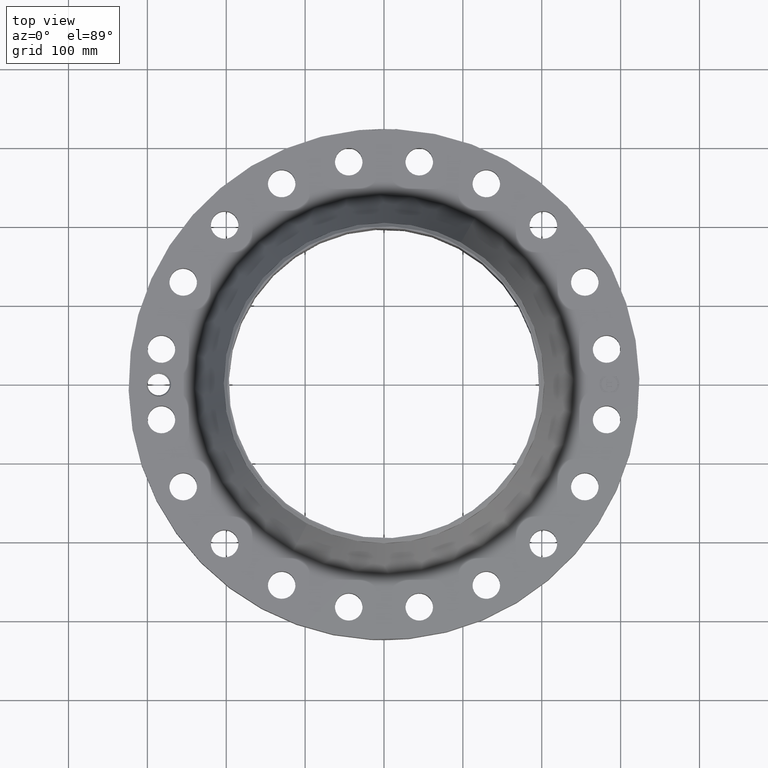
[diagram: clean part render]
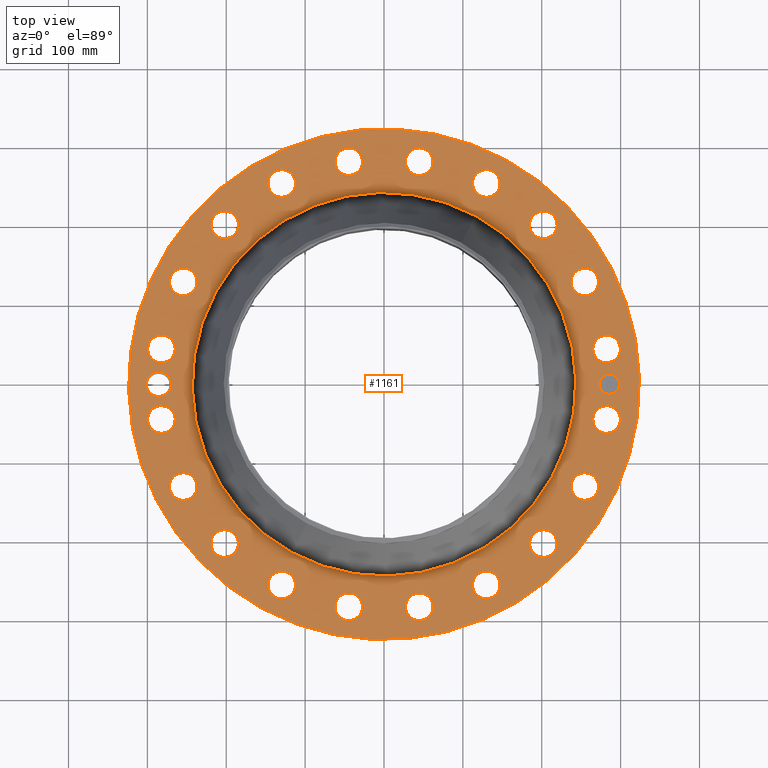
[diagram: same view with one face highlighted and labeled with its STEP entity id]
A machine part, top view. The second image highlights one B-rep face of the part: STEP entity #1161.
In plain terms, the highlighted planar face has unit normal (0, 0, -1).
Its self-contained STEP definition (entity closure, byte-faithful):
#58=AXIS2_PLACEMENT_3D('Circle Axis2P3D',#56,#57,$) ;
#608=AXIS2_PLACEMENT_3D('Circle Axis2P3D',#606,#607,$) ;
#708=AXIS2_PLACEMENT_3D('Plane Axis2P3D',#705,#706,#707) ;
#741=AXIS2_PLACEMENT_3D('Circle Axis2P3D',#739,#740,$) ;
#748=AXIS2_PLACEMENT_3D('Circle Axis2P3D',#746,#747,$) ;
#755=AXIS2_PLACEMENT_3D('Circle Axis2P3D',#753,#754,$) ;
#767=AXIS2_PLACEMENT_3D('Circle Axis2P3D',#765,#766,$) ;
#776=AXIS2_PLACEMENT_3D('Circle Axis2P3D',#774,#775,$) ;
#785=AXIS2_PLACEMENT_3D('Circle Axis2P3D',#783,#784,$) ;
#794=AXIS2_PLACEMENT_3D('Circle Axis2P3D',#792,#793,$) ;
#803=AXIS2_PLACEMENT_3D('Circle Axis2P3D',#801,#802,$) ;
#812=AXIS2_PLACEMENT_3D('Circle Axis2P3D',#810,#811,$) ;
#821=AXIS2_PLACEMENT_3D('Circle Axis2P3D',#819,#820,$) ;
#830=AXIS2_PLACEMENT_3D('Circle Axis2P3D',#828,#829,$) ;
#839=AXIS2_PLACEMENT_3D('Circle Axis2P3D',#837,#838,$) ;
#848=AXIS2_PLACEMENT_3D('Circle Axis2P3D',#846,#847,$) ;
#857=AXIS2_PLACEMENT_3D('Circle Axis2P3D',#855,#856,$) ;
#866=AXIS2_PLACEMENT_3D('Circle Axis2P3D',#864,#865,$) ;
#875=AXIS2_PLACEMENT_3D('Circle Axis2P3D',#873,#874,$) ;
#884=AXIS2_PLACEMENT_3D('Circle Axis2P3D',#882,#883,$) ;
#893=AXIS2_PLACEMENT_3D('Circle Axis2P3D',#891,#892,$) ;
#902=AXIS2_PLACEMENT_3D('Circle Axis2P3D',#900,#901,$) ;
#911=AXIS2_PLACEMENT_3D('Circle Axis2P3D',#909,#910,$) ;
#920=AXIS2_PLACEMENT_3D('Circle Axis2P3D',#918,#919,$) ;
#929=AXIS2_PLACEMENT_3D('Circle Axis2P3D',#927,#928,$) ;
#938=AXIS2_PLACEMENT_3D('Circle Axis2P3D',#936,#937,$) ;
#947=AXIS2_PLACEMENT_3D('Circle Axis2P3D',#945,#946,$) ;
#956=AXIS2_PLACEMENT_3D('Circle Axis2P3D',#954,#955,$) ;
#965=AXIS2_PLACEMENT_3D('Circle Axis2P3D',#963,#964,$) ;
#974=AXIS2_PLACEMENT_3D('Circle Axis2P3D',#972,#973,$) ;
#983=AXIS2_PLACEMENT_3D('Circle Axis2P3D',#981,#982,$) ;
#992=AXIS2_PLACEMENT_3D('Circle Axis2P3D',#990,#991,$) ;
#1001=AXIS2_PLACEMENT_3D('Circle Axis2P3D',#999,#1000,$) ;
#1010=AXIS2_PLACEMENT_3D('Circle Axis2P3D',#1008,#1009,$) ;
#1019=AXIS2_PLACEMENT_3D('Circle Axis2P3D',#1017,#1018,$) ;
#1028=AXIS2_PLACEMENT_3D('Circle Axis2P3D',#1026,#1027,$) ;
#1037=AXIS2_PLACEMENT_3D('Circle Axis2P3D',#1035,#1036,$) ;
#1046=AXIS2_PLACEMENT_3D('Circle Axis2P3D',#1044,#1045,$) ;
#1055=AXIS2_PLACEMENT_3D('Circle Axis2P3D',#1053,#1054,$) ;
#1064=AXIS2_PLACEMENT_3D('Circle Axis2P3D',#1062,#1063,$) ;
#1073=AXIS2_PLACEMENT_3D('Circle Axis2P3D',#1071,#1072,$) ;
#1082=AXIS2_PLACEMENT_3D('Circle Axis2P3D',#1080,#1081,$) ;
#1091=AXIS2_PLACEMENT_3D('Circle Axis2P3D',#1089,#1090,$) ;
#1100=AXIS2_PLACEMENT_3D('Circle Axis2P3D',#1098,#1099,$) ;
#1109=AXIS2_PLACEMENT_3D('Circle Axis2P3D',#1107,#1108,$) ;
#1118=AXIS2_PLACEMENT_3D('Circle Axis2P3D',#1116,#1117,$) ;
#1127=AXIS2_PLACEMENT_3D('Circle Axis2P3D',#1125,#1126,$) ;
#1136=AXIS2_PLACEMENT_3D('Circle Axis2P3D',#1134,#1135,$) ;
#1145=AXIS2_PLACEMENT_3D('Circle Axis2P3D',#1143,#1144,$) ;
#1154=AXIS2_PLACEMENT_3D('Circle Axis2P3D',#1152,#1153,$) ;
#53=CARTESIAN_POINT('Vertex',(-6.11267561723,-11.1891776641,2.31000000001)) ;
#56=CARTESIAN_POINT('Axis2P3D Location',(0.,0.,2.31000000001)) ;
#60=CARTESIAN_POINT('Vertex',(6.11267561723,11.1891776641,2.31000000001)) ;
#606=CARTESIAN_POINT('Axis2P3D Location',(0.,0.,2.31000000001)) ;
#705=CARTESIAN_POINT('Axis2P3D Location',(0.,12.7500000001,2.31000000001)) ;
#715=CARTESIAN_POINT('Control Point',(-10.625,2.23792987641E-015,2.31000000001)) ;
#716=CARTESIAN_POINT('Control Point',(-10.627053404,0.0564977587389,2.31000000001)) ;
#717=CARTESIAN_POINT('Control Point',(-10.6354952382,0.112654190292,2.31000000001)) ;
#718=CARTESIAN_POINT('Control Point',(-10.6502771591,0.167499162331,2.31000000001)) ;
#719=CARTESIAN_POINT('Control Point',(-10.6711200803,0.220072062833,2.31000000001)) ;
#720=CARTESIAN_POINT('Control Point',(-10.6975514528,0.269526248742,2.31000000001)) ;
#721=CARTESIAN_POINT('Vertex',(-10.625,2.23792987641E-015,2.31000000001)) ;
#723=CARTESIAN_POINT('Vertex',(-10.6975514528,0.269526248742,2.31000000001)) ;
#727=CARTESIAN_POINT('Control Point',(-10.625,0.,2.31000000001)) ;
#728=CARTESIAN_POINT('Control Point',(-10.6268633152,-0.0512676180666,2.31000000001)) ;
#729=CARTESIAN_POINT('Control Point',(-10.6339870212,-0.102254178914,2.31000000001)) ;
#730=CARTESIAN_POINT('Control Point',(-10.6463262874,-0.152216836455,2.31000000001)) ;
#731=CARTESIAN_POINT('Control Point',(-10.6654955776,-0.205462311492,2.31000000001)) ;
#732=CARTESIAN_POINT('Control Point',(-10.6903817405,-0.255800740708,2.31000000001)) ;
#733=CARTESIAN_POINT('Control Point',(-10.6927804709,-0.260523955129,2.31000000001)) ;
#734=CARTESIAN_POINT('Control Point',(-10.6952293397,-0.265219843981,2.31000000001)) ;
#735=CARTESIAN_POINT('Control Point',(-10.6977279419,-0.269887698635,2.31000000001)) ;
#736=CARTESIAN_POINT('Vertex',(-10.6977279419,-0.269887698635,2.31000000001)) ;
#739=CARTESIAN_POINT('Axis2P3D Location',(-11.25,-4.47585975282E-015,2.31000000001)) ;
#743=CARTESIAN_POINT('Vertex',(-10.7105587751,-0.294698084326,2.31000000001)) ;
#746=CARTESIAN_POINT('Axis2P3D Location',(-11.25,-4.47585975282E-015,2.31000000001)) ;
#750=CARTESIAN_POINT('Vertex',(-11.789441225,0.294698084326,2.31000000001)) ;
#753=CARTESIAN_POINT('Axis2P3D Location',(-11.25,-4.47585975282E-015,2.31000000001)) ;
#765=CARTESIAN_POINT('Axis2P3D Location',(11.1114938317,-1.75988773171,2.31000000001)) ;
#769=CARTESIAN_POINT('Vertex',(10.505961864,-1.42908411007,2.31000000001)) ;
#771=CARTESIAN_POINT('Vertex',(11.7170257994,-2.09069135335,2.31000000001)) ;
#774=CARTESIAN_POINT('Axis2P3D Location',(11.1114938317,-1.75988773171,2.31000000001)) ;
#783=CARTESIAN_POINT('Axis2P3D Location',(0.,0.,2.31000000001)) ;
#787=CARTESIAN_POINT('Vertex',(-4.5907799876,-8.40336640038,2.31000000001)) ;
#789=CARTESIAN_POINT('Vertex',(4.5907799876,8.40336640038,2.31000000001)) ;
#792=CARTESIAN_POINT('Axis2P3D Location',(0.,0.,2.31000000001)) ;
#801=CARTESIAN_POINT('Axis2P3D Location',(10.0238233972,-5.10739312209,2.31000000001)) ;
#805=CARTESIAN_POINT('Vertex',(10.49749458,-5.60912573072,2.31000000001)) ;
#807=CARTESIAN_POINT('Vertex',(9.55015221433,-4.60566051346,2.31000000001)) ;
#810=CARTESIAN_POINT('Axis2P3D Location',(10.0238233972,-5.10739312209,2.31000000001)) ;
#819=CARTESIAN_POINT('Axis2P3D Location',(7.95495128838,-7.95495128838,2.31000000001)) ;
#823=CARTESIAN_POINT('Vertex',(8.25039545069,-8.5784998005,2.31000000001)) ;
#825=CARTESIAN_POINT('Vertex',(7.65950712607,-7.33140277626,2.31000000001)) ;
#828=CARTESIAN_POINT('Axis2P3D Location',(7.95495128838,-7.95495128838,2.31000000001)) ;
#837=CARTESIAN_POINT('Axis2P3D Location',(5.10739312209,-10.0238233972,2.31000000001)) ;
#841=CARTESIAN_POINT('Vertex',(5.19569013079,-10.7081505399,2.31000000001)) ;
#843=CARTESIAN_POINT('Vertex',(5.01909611339,-9.33949625444,2.31000000001)) ;
#846=CARTESIAN_POINT('Axis2P3D Location',(5.10739312209,-10.0238233972,2.31000000001)) ;
#855=CARTESIAN_POINT('Axis2P3D Location',(1.75988773171,-11.1114938317,2.31000000001)) ;
#859=CARTESIAN_POINT('Vertex',(1.6323944604,-11.7896128963,2.31000000001)) ;
#861=CARTESIAN_POINT('Vertex',(1.88738100302,-10.4333747671,2.31000000001)) ;
#864=CARTESIAN_POINT('Axis2P3D Location',(1.75988773171,-11.1114938317,2.31000000001)) ;
#873=CARTESIAN_POINT('Axis2P3D Location',(-1.75988773171,-11.1114938317,2.31000000001)) ;
#877=CARTESIAN_POINT('Vertex',(-2.09069135335,-11.7170257994,2.31000000001)) ;
#879=CARTESIAN_POINT('Vertex',(-1.42908411007,-10.505961864,2.31000000001)) ;
#882=CARTESIAN_POINT('Axis2P3D Location',(-1.75988773171,-11.1114938317,2.31000000001)) ;
#891=CARTESIAN_POINT('Axis2P3D Location',(-5.10739312209,-10.0238233972,2.31000000001)) ;
#895=CARTESIAN_POINT('Vertex',(-5.60912573072,-10.49749458,2.31000000001)) ;
#897=CARTESIAN_POINT('Vertex',(-4.60566051346,-9.55015221433,2.31000000001)) ;
#900=CARTESIAN_POINT('Axis2P3D Location',(-5.10739312209,-10.0238233972,2.31000000001)) ;
#909=CARTESIAN_POINT('Axis2P3D Location',(-7.95495128838,-7.95495128838,2.31000000001)) ;
#913=CARTESIAN_POINT('Vertex',(-8.5784998005,-8.25039545069,2.31000000001)) ;
#915=CARTESIAN_POINT('Vertex',(-7.33140277626,-7.65950712607,2.31000000001)) ;
#918=CARTESIAN_POINT('Axis2P3D Location',(-7.95495128838,-7.95495128838,2.31000000001)) ;
#927=CARTESIAN_POINT('Axis2P3D Location',(-10.0238233972,-5.10739312209,2.31000000001)) ;
#931=CARTESIAN_POINT('Vertex',(-10.7081505399,-5.19569013079,2.31000000001)) ;
#933=CARTESIAN_POINT('Vertex',(-9.33949625444,-5.01909611339,2.31000000001)) ;
#936=CARTESIAN_POINT('Axis2P3D Location',(-10.0238233972,-5.10739312209,2.31000000001)) ;
#945=CARTESIAN_POINT('Axis2P3D Location',(-11.1114938317,-1.75988773171,2.31000000001)) ;
#949=CARTESIAN_POINT('Vertex',(-11.7896128963,-1.6323944604,2.31000000001)) ;
#951=CARTESIAN_POINT('Vertex',(-10.4333747671,-1.88738100302,2.31000000001)) ;
#954=CARTESIAN_POINT('Axis2P3D Location',(-11.1114938317,-1.75988773171,2.31000000001)) ;
#963=CARTESIAN_POINT('Axis2P3D Location',(-11.1114938317,1.75988773171,2.31000000001)) ;
#967=CARTESIAN_POINT('Vertex',(-11.7170257994,2.09069135335,2.31000000001)) ;
#969=CARTESIAN_POINT('Vertex',(-10.505961864,1.42908411007,2.31000000001)) ;
#972=CARTESIAN_POINT('Axis2P3D Location',(-11.1114938317,1.75988773171,2.31000000001)) ;
#981=CARTESIAN_POINT('Axis2P3D Location',(-10.0238233972,5.10739312209,2.31000000001)) ;
#985=CARTESIAN_POINT('Vertex',(-10.49749458,5.60912573072,2.31000000001)) ;
#987=CARTESIAN_POINT('Vertex',(-9.55015221433,4.60566051346,2.31000000001)) ;
#990=CARTESIAN_POINT('Axis2P3D Location',(-10.0238233972,5.10739312209,2.31000000001)) ;
#999=CARTESIAN_POINT('Axis2P3D Location',(-7.95495128838,7.95495128838,2.31000000001)) ;
#1003=CARTESIAN_POINT('Vertex',(-8.25039545069,8.5784998005,2.31000000001)) ;
#1005=CARTESIAN_POINT('Vertex',(-7.65950712607,7.33140277626,2.31000000001)) ;
#1008=CARTESIAN_POINT('Axis2P3D Location',(-7.95495128838,7.95495128838,2.31000000001)) ;
#1017=CARTESIAN_POINT('Axis2P3D Location',(-5.10739312209,10.0238233972,2.31000000001)) ;
#1021=CARTESIAN_POINT('Vertex',(-5.19569013079,10.7081505399,2.31000000001)) ;
#1023=CARTESIAN_POINT('Vertex',(-5.01909611339,9.33949625444,2.31000000001)) ;
#1026=CARTESIAN_POINT('Axis2P3D Location',(-5.10739312209,10.0238233972,2.31000000001)) ;
#1035=CARTESIAN_POINT('Axis2P3D Location',(-1.75988773171,11.1114938317,2.31000000001)) ;
#1039=CARTESIAN_POINT('Vertex',(-1.6323944604,11.7896128963,2.31000000001)) ;
#1041=CARTESIAN_POINT('Vertex',(-1.88738100302,10.4333747671,2.31000000001)) ;
#1044=CARTESIAN_POINT('Axis2P3D Location',(-1.75988773171,11.1114938317,2.31000000001)) ;
#1053=CARTESIAN_POINT('Axis2P3D Location',(1.75988773171,11.1114938317,2.31000000001)) ;
#1057=CARTESIAN_POINT('Vertex',(2.09069135335,11.7170257994,2.31000000001)) ;
#1059=CARTESIAN_POINT('Vertex',(1.42908411007,10.505961864,2.31000000001)) ;
#1062=CARTESIAN_POINT('Axis2P3D Location',(1.75988773171,11.1114938317,2.31000000001)) ;
#1071=CARTESIAN_POINT('Axis2P3D Location',(5.10739312209,10.0238233972,2.31000000001)) ;
#1075=CARTESIAN_POINT('Vertex',(5.60912573072,10.49749458,2.31000000001)) ;
#1077=CARTESIAN_POINT('Vertex',(4.60566051346,9.55015221433,2.31000000001)) ;
#1080=CARTESIAN_POINT('Axis2P3D Location',(5.10739312209,10.0238233972,2.31000000001)) ;
#1089=CARTESIAN_POINT('Axis2P3D Location',(7.95495128838,7.95495128838,2.31000000001)) ;
#1093=CARTESIAN_POINT('Vertex',(8.5784998005,8.25039545069,2.31000000001)) ;
#1095=CARTESIAN_POINT('Vertex',(7.33140277626,7.65950712607,2.31000000001)) ;
#1098=CARTESIAN_POINT('Axis2P3D Location',(7.95495128838,7.95495128838,2.31000000001)) ;
#1107=CARTESIAN_POINT('Axis2P3D Location',(10.0238233972,5.10739312209,2.31000000001)) ;
#1111=CARTESIAN_POINT('Vertex',(10.7081505399,5.19569013079,2.31000000001)) ;
#1113=CARTESIAN_POINT('Vertex',(9.33949625444,5.01909611339,2.31000000001)) ;
#1116=CARTESIAN_POINT('Axis2P3D Location',(10.0238233972,5.10739312209,2.31000000001)) ;
#1125=CARTESIAN_POINT('Axis2P3D Location',(11.1114938317,1.75988773171,2.31000000001)) ;
#1129=CARTESIAN_POINT('Vertex',(11.7896128963,1.6323944604,2.31000000001)) ;
#1131=CARTESIAN_POINT('Vertex',(10.4333747671,1.88738100302,2.31000000001)) ;
#1134=CARTESIAN_POINT('Axis2P3D Location',(11.1114938317,1.75988773171,2.31000000001)) ;
#1143=CARTESIAN_POINT('Axis2P3D Location',(11.25,0.,2.31000000001)) ;
#1147=CARTESIAN_POINT('Vertex',(11.25,0.499999995002,2.31000000001)) ;
#1149=CARTESIAN_POINT('Vertex',(11.25,-0.499999995002,2.31000000001)) ;
#1152=CARTESIAN_POINT('Axis2P3D Location',(11.25,0.,2.31000000001)) ;
#57=DIRECTION('Axis2P3D Direction',(0.,0.,-0.0393700787402)) ;
#607=DIRECTION('Axis2P3D Direction',(0.,0.,-0.0393700787402)) ;
#706=DIRECTION('Axis2P3D Direction',(0.,0.,-0.0393700787402)) ;
#707=DIRECTION('Axis2P3D XDirection',(0.0393700787402,0.,0.)) ;
#740=DIRECTION('Axis2P3D Direction',(0.,0.,-0.0393700787402)) ;
#747=DIRECTION('Axis2P3D Direction',(0.,0.,-0.0393700787402)) ;
#754=DIRECTION('Axis2P3D Direction',(0.,0.,-0.0393700787402)) ;
#766=DIRECTION('Axis2P3D Direction',(0.,0.,-0.0393700787402)) ;
#775=DIRECTION('Axis2P3D Direction',(0.,0.,-0.0393700787402)) ;
#784=DIRECTION('Axis2P3D Direction',(0.,0.,-0.0393700787402)) ;
#793=DIRECTION('Axis2P3D Direction',(0.,0.,-0.0393700787402)) ;
#802=DIRECTION('Axis2P3D Direction',(0.,0.,-0.0393700787402)) ;
#811=DIRECTION('Axis2P3D Direction',(0.,0.,-0.0393700787402)) ;
#820=DIRECTION('Axis2P3D Direction',(0.,0.,-0.0393700787402)) ;
#829=DIRECTION('Axis2P3D Direction',(0.,0.,-0.0393700787402)) ;
#838=DIRECTION('Axis2P3D Direction',(0.,0.,-0.0393700787402)) ;
#847=DIRECTION('Axis2P3D Direction',(0.,0.,-0.0393700787402)) ;
#856=DIRECTION('Axis2P3D Direction',(0.,0.,-0.0393700787402)) ;
#865=DIRECTION('Axis2P3D Direction',(0.,0.,-0.0393700787402)) ;
#874=DIRECTION('Axis2P3D Direction',(0.,0.,-0.0393700787402)) ;
#883=DIRECTION('Axis2P3D Direction',(0.,0.,-0.0393700787402)) ;
#892=DIRECTION('Axis2P3D Direction',(0.,0.,-0.0393700787402)) ;
#901=DIRECTION('Axis2P3D Direction',(0.,0.,-0.0393700787402)) ;
#910=DIRECTION('Axis2P3D Direction',(0.,0.,-0.0393700787402)) ;
#919=DIRECTION('Axis2P3D Direction',(0.,0.,-0.0393700787402)) ;
#928=DIRECTION('Axis2P3D Direction',(0.,0.,-0.0393700787402)) ;
#937=DIRECTION('Axis2P3D Direction',(0.,0.,-0.0393700787402)) ;
#946=DIRECTION('Axis2P3D Direction',(0.,0.,-0.0393700787402)) ;
#955=DIRECTION('Axis2P3D Direction',(0.,0.,-0.0393700787402)) ;
#964=DIRECTION('Axis2P3D Direction',(0.,0.,-0.0393700787402)) ;
#973=DIRECTION('Axis2P3D Direction',(0.,0.,-0.0393700787402)) ;
#982=DIRECTION('Axis2P3D Direction',(0.,0.,-0.0393700787402)) ;
#991=DIRECTION('Axis2P3D Direction',(0.,0.,-0.0393700787402)) ;
#1000=DIRECTION('Axis2P3D Direction',(0.,0.,-0.0393700787402)) ;
#1009=DIRECTION('Axis2P3D Direction',(0.,0.,-0.0393700787402)) ;
#1018=DIRECTION('Axis2P3D Direction',(0.,0.,-0.0393700787402)) ;
#1027=DIRECTION('Axis2P3D Direction',(0.,0.,-0.0393700787402)) ;
#1036=DIRECTION('Axis2P3D Direction',(0.,0.,-0.0393700787402)) ;
#1045=DIRECTION('Axis2P3D Direction',(0.,0.,-0.0393700787402)) ;
#1054=DIRECTION('Axis2P3D Direction',(0.,0.,-0.0393700787402)) ;
#1063=DIRECTION('Axis2P3D Direction',(0.,0.,-0.0393700787402)) ;
#1072=DIRECTION('Axis2P3D Direction',(0.,0.,-0.0393700787402)) ;
#1081=DIRECTION('Axis2P3D Direction',(0.,0.,-0.0393700787402)) ;
#1090=DIRECTION('Axis2P3D Direction',(0.,0.,-0.0393700787402)) ;
#1099=DIRECTION('Axis2P3D Direction',(0.,0.,-0.0393700787402)) ;
#1108=DIRECTION('Axis2P3D Direction',(0.,0.,-0.0393700787402)) ;
#1117=DIRECTION('Axis2P3D Direction',(0.,0.,-0.0393700787402)) ;
#1126=DIRECTION('Axis2P3D Direction',(0.,0.,-0.0393700787402)) ;
#1135=DIRECTION('Axis2P3D Direction',(0.,0.,-0.0393700787402)) ;
#1144=DIRECTION('Axis2P3D Direction',(0.,0.,-0.0393700787402)) ;
#1153=DIRECTION('Axis2P3D Direction',(0.,0.,-0.0393700787402)) ;
#711=ORIENTED_EDGE('',*,*,#610,.F.) ;
#712=ORIENTED_EDGE('',*,*,#62,.F.) ;
#759=ORIENTED_EDGE('',*,*,#725,.F.) ;
#760=ORIENTED_EDGE('',*,*,#738,.T.) ;
#761=ORIENTED_EDGE('',*,*,#745,.T.) ;
#762=ORIENTED_EDGE('',*,*,#752,.T.) ;
#763=ORIENTED_EDGE('',*,*,#757,.T.) ;
#780=ORIENTED_EDGE('',*,*,#773,.T.) ;
#781=ORIENTED_EDGE('',*,*,#778,.T.) ;
#798=ORIENTED_EDGE('',*,*,#791,.T.) ;
#799=ORIENTED_EDGE('',*,*,#796,.T.) ;
#816=ORIENTED_EDGE('',*,*,#809,.T.) ;
#817=ORIENTED_EDGE('',*,*,#814,.T.) ;
#834=ORIENTED_EDGE('',*,*,#827,.T.) ;
#835=ORIENTED_EDGE('',*,*,#832,.T.) ;
#852=ORIENTED_EDGE('',*,*,#845,.T.) ;
#853=ORIENTED_EDGE('',*,*,#850,.T.) ;
#870=ORIENTED_EDGE('',*,*,#863,.T.) ;
#871=ORIENTED_EDGE('',*,*,#868,.T.) ;
#888=ORIENTED_EDGE('',*,*,#881,.T.) ;
#889=ORIENTED_EDGE('',*,*,#886,.T.) ;
#906=ORIENTED_EDGE('',*,*,#899,.T.) ;
#907=ORIENTED_EDGE('',*,*,#904,.T.) ;
#924=ORIENTED_EDGE('',*,*,#917,.T.) ;
#925=ORIENTED_EDGE('',*,*,#922,.T.) ;
#942=ORIENTED_EDGE('',*,*,#935,.T.) ;
#943=ORIENTED_EDGE('',*,*,#940,.T.) ;
#960=ORIENTED_EDGE('',*,*,#953,.T.) ;
#961=ORIENTED_EDGE('',*,*,#958,.T.) ;
#978=ORIENTED_EDGE('',*,*,#971,.T.) ;
#979=ORIENTED_EDGE('',*,*,#976,.T.) ;
#996=ORIENTED_EDGE('',*,*,#989,.T.) ;
#997=ORIENTED_EDGE('',*,*,#994,.T.) ;
#1014=ORIENTED_EDGE('',*,*,#1007,.T.) ;
#1015=ORIENTED_EDGE('',*,*,#1012,.T.) ;
#1032=ORIENTED_EDGE('',*,*,#1025,.T.) ;
#1033=ORIENTED_EDGE('',*,*,#1030,.T.) ;
#1050=ORIENTED_EDGE('',*,*,#1043,.T.) ;
#1051=ORIENTED_EDGE('',*,*,#1048,.T.) ;
#1068=ORIENTED_EDGE('',*,*,#1061,.T.) ;
#1069=ORIENTED_EDGE('',*,*,#1066,.T.) ;
#1086=ORIENTED_EDGE('',*,*,#1079,.T.) ;
#1087=ORIENTED_EDGE('',*,*,#1084,.T.) ;
#1104=ORIENTED_EDGE('',*,*,#1097,.T.) ;
#1105=ORIENTED_EDGE('',*,*,#1102,.T.) ;
#1122=ORIENTED_EDGE('',*,*,#1115,.T.) ;
#1123=ORIENTED_EDGE('',*,*,#1120,.T.) ;
#1140=ORIENTED_EDGE('',*,*,#1133,.T.) ;
#1141=ORIENTED_EDGE('',*,*,#1138,.T.) ;
#1158=ORIENTED_EDGE('',*,*,#1151,.T.) ;
#1159=ORIENTED_EDGE('',*,*,#1156,.T.) ;
#764=FACE_BOUND('',#758,.T.) ;
#782=FACE_BOUND('',#779,.T.) ;
#800=FACE_BOUND('',#797,.T.) ;
#818=FACE_BOUND('',#815,.T.) ;
#836=FACE_BOUND('',#833,.T.) ;
#854=FACE_BOUND('',#851,.T.) ;
#872=FACE_BOUND('',#869,.T.) ;
#890=FACE_BOUND('',#887,.T.) ;
#908=FACE_BOUND('',#905,.T.) ;
#926=FACE_BOUND('',#923,.T.) ;
#944=FACE_BOUND('',#941,.T.) ;
#962=FACE_BOUND('',#959,.T.) ;
#980=FACE_BOUND('',#977,.T.) ;
#998=FACE_BOUND('',#995,.T.) ;
#1016=FACE_BOUND('',#1013,.T.) ;
#1034=FACE_BOUND('',#1031,.T.) ;
#1052=FACE_BOUND('',#1049,.T.) ;
#1070=FACE_BOUND('',#1067,.T.) ;
#1088=FACE_BOUND('',#1085,.T.) ;
#1106=FACE_BOUND('',#1103,.T.) ;
#1124=FACE_BOUND('',#1121,.T.) ;
#1142=FACE_BOUND('',#1139,.T.) ;
#1160=FACE_BOUND('',#1157,.T.) ;
#1161=ADVANCED_FACE('PartBody',(#713,#764,#782,#800,#818,#836,#854,#872,#890,#908,#926,#944,#962,#980,#998,#1016,#1034,#1052,#1070,#1088,#1106,#1124,#1142,#1160),#709,.F.) ;
#714=B_SPLINE_CURVE_WITH_KNOTS('',5,(#715,#716,#717,#718,#719,#720),.UNSPECIFIED.,.F.,.U.,(6,6),(0.,9.8778155284),.UNSPECIFIED.) ;
#726=B_SPLINE_CURVE_WITH_KNOTS('',5,(#727,#728,#729,#730,#731,#732,#733,#734,#735),.UNSPECIFIED.,.F.,.U.,(6,3,6),(0.,8.96340111805,9.8972871971),.UNSPECIFIED.) ;
#59=CIRCLE('generated circle',#58,12.7500000001) ;
#609=CIRCLE('generated circle',#608,12.7500000001) ;
#742=CIRCLE('generated circle',#741,0.614690000002) ;
#749=CIRCLE('generated circle',#748,0.614690000002) ;
#756=CIRCLE('generated circle',#755,0.614690000002) ;
#768=CIRCLE('generated circle',#767,0.690000000003) ;
#777=CIRCLE('generated circle',#776,0.690000000003) ;
#786=CIRCLE('generated circle',#785,9.57558498232) ;
#795=CIRCLE('generated circle',#794,9.57558498232) ;
#804=CIRCLE('generated circle',#803,0.690000000003) ;
#813=CIRCLE('generated circle',#812,0.690000000003) ;
#822=CIRCLE('generated circle',#821,0.690000000003) ;
#831=CIRCLE('generated circle',#830,0.690000000003) ;
#840=CIRCLE('generated circle',#839,0.690000000003) ;
#849=CIRCLE('generated circle',#848,0.690000000003) ;
#858=CIRCLE('generated circle',#857,0.690000000003) ;
#867=CIRCLE('generated circle',#866,0.690000000003) ;
#876=CIRCLE('generated circle',#875,0.690000000003) ;
#885=CIRCLE('generated circle',#884,0.690000000003) ;
#894=CIRCLE('generated circle',#893,0.690000000003) ;
#903=CIRCLE('generated circle',#902,0.690000000003) ;
#912=CIRCLE('generated circle',#911,0.690000000003) ;
#921=CIRCLE('generated circle',#920,0.690000000003) ;
#930=CIRCLE('generated circle',#929,0.690000000003) ;
#939=CIRCLE('generated circle',#938,0.690000000003) ;
#948=CIRCLE('generated circle',#947,0.690000000003) ;
#957=CIRCLE('generated circle',#956,0.690000000003) ;
#966=CIRCLE('generated circle',#965,0.690000000003) ;
#975=CIRCLE('generated circle',#974,0.690000000003) ;
#984=CIRCLE('generated circle',#983,0.690000000003) ;
#993=CIRCLE('generated circle',#992,0.690000000003) ;
#1002=CIRCLE('generated circle',#1001,0.690000000003) ;
#1011=CIRCLE('generated circle',#1010,0.690000000003) ;
#1020=CIRCLE('generated circle',#1019,0.690000000003) ;
#1029=CIRCLE('generated circle',#1028,0.690000000003) ;
#1038=CIRCLE('generated circle',#1037,0.690000000003) ;
#1047=CIRCLE('generated circle',#1046,0.690000000003) ;
#1056=CIRCLE('generated circle',#1055,0.690000000003) ;
#1065=CIRCLE('generated circle',#1064,0.690000000003) ;
#1074=CIRCLE('generated circle',#1073,0.690000000003) ;
#1083=CIRCLE('generated circle',#1082,0.690000000003) ;
#1092=CIRCLE('generated circle',#1091,0.690000000003) ;
#1101=CIRCLE('generated circle',#1100,0.690000000003) ;
#1110=CIRCLE('generated circle',#1109,0.690000000003) ;
#1119=CIRCLE('generated circle',#1118,0.690000000003) ;
#1128=CIRCLE('generated circle',#1127,0.690000000003) ;
#1137=CIRCLE('generated circle',#1136,0.690000000003) ;
#1146=CIRCLE('generated circle',#1145,0.499999995002) ;
#1155=CIRCLE('generated circle',#1154,0.499999995002) ;
#62=EDGE_CURVE('',#54,#61,#59,.T.) ;
#610=EDGE_CURVE('',#61,#54,#609,.T.) ;
#725=EDGE_CURVE('',#722,#724,#714,.T.) ;
#738=EDGE_CURVE('',#722,#737,#726,.T.) ;
#745=EDGE_CURVE('',#737,#744,#742,.T.) ;
#752=EDGE_CURVE('',#744,#751,#749,.T.) ;
#757=EDGE_CURVE('',#751,#724,#756,.T.) ;
#773=EDGE_CURVE('',#770,#772,#768,.T.) ;
#778=EDGE_CURVE('',#772,#770,#777,.T.) ;
#791=EDGE_CURVE('',#788,#790,#786,.T.) ;
#796=EDGE_CURVE('',#790,#788,#795,.T.) ;
#809=EDGE_CURVE('',#806,#808,#804,.T.) ;
#814=EDGE_CURVE('',#808,#806,#813,.T.) ;
#827=EDGE_CURVE('',#824,#826,#822,.T.) ;
#832=EDGE_CURVE('',#826,#824,#831,.T.) ;
#845=EDGE_CURVE('',#842,#844,#840,.T.) ;
#850=EDGE_CURVE('',#844,#842,#849,.T.) ;
#863=EDGE_CURVE('',#860,#862,#858,.T.) ;
#868=EDGE_CURVE('',#862,#860,#867,.T.) ;
#881=EDGE_CURVE('',#878,#880,#876,.T.) ;
#886=EDGE_CURVE('',#880,#878,#885,.T.) ;
#899=EDGE_CURVE('',#896,#898,#894,.T.) ;
#904=EDGE_CURVE('',#898,#896,#903,.T.) ;
#917=EDGE_CURVE('',#914,#916,#912,.T.) ;
#922=EDGE_CURVE('',#916,#914,#921,.T.) ;
#935=EDGE_CURVE('',#932,#934,#930,.T.) ;
#940=EDGE_CURVE('',#934,#932,#939,.T.) ;
#953=EDGE_CURVE('',#950,#952,#948,.T.) ;
#958=EDGE_CURVE('',#952,#950,#957,.T.) ;
#971=EDGE_CURVE('',#968,#970,#966,.T.) ;
#976=EDGE_CURVE('',#970,#968,#975,.T.) ;
#989=EDGE_CURVE('',#986,#988,#984,.T.) ;
#994=EDGE_CURVE('',#988,#986,#993,.T.) ;
#1007=EDGE_CURVE('',#1004,#1006,#1002,.T.) ;
#1012=EDGE_CURVE('',#1006,#1004,#1011,.T.) ;
#1025=EDGE_CURVE('',#1022,#1024,#1020,.T.) ;
#1030=EDGE_CURVE('',#1024,#1022,#1029,.T.) ;
#1043=EDGE_CURVE('',#1040,#1042,#1038,.T.) ;
#1048=EDGE_CURVE('',#1042,#1040,#1047,.T.) ;
#1061=EDGE_CURVE('',#1058,#1060,#1056,.T.) ;
#1066=EDGE_CURVE('',#1060,#1058,#1065,.T.) ;
#1079=EDGE_CURVE('',#1076,#1078,#1074,.T.) ;
#1084=EDGE_CURVE('',#1078,#1076,#1083,.T.) ;
#1097=EDGE_CURVE('',#1094,#1096,#1092,.T.) ;
#1102=EDGE_CURVE('',#1096,#1094,#1101,.T.) ;
#1115=EDGE_CURVE('',#1112,#1114,#1110,.T.) ;
#1120=EDGE_CURVE('',#1114,#1112,#1119,.T.) ;
#1133=EDGE_CURVE('',#1130,#1132,#1128,.T.) ;
#1138=EDGE_CURVE('',#1132,#1130,#1137,.T.) ;
#1151=EDGE_CURVE('',#1148,#1150,#1146,.T.) ;
#1156=EDGE_CURVE('',#1150,#1148,#1155,.T.) ;
#710=EDGE_LOOP('',(#711,#712)) ;
#758=EDGE_LOOP('',(#759,#760,#761,#762,#763)) ;
#779=EDGE_LOOP('',(#780,#781)) ;
#797=EDGE_LOOP('',(#798,#799)) ;
#815=EDGE_LOOP('',(#816,#817)) ;
#833=EDGE_LOOP('',(#834,#835)) ;
#851=EDGE_LOOP('',(#852,#853)) ;
#869=EDGE_LOOP('',(#870,#871)) ;
#887=EDGE_LOOP('',(#888,#889)) ;
#905=EDGE_LOOP('',(#906,#907)) ;
#923=EDGE_LOOP('',(#924,#925)) ;
#941=EDGE_LOOP('',(#942,#943)) ;
#959=EDGE_LOOP('',(#960,#961)) ;
#977=EDGE_LOOP('',(#978,#979)) ;
#995=EDGE_LOOP('',(#996,#997)) ;
#1013=EDGE_LOOP('',(#1014,#1015)) ;
#1031=EDGE_LOOP('',(#1032,#1033)) ;
#1049=EDGE_LOOP('',(#1050,#1051)) ;
#1067=EDGE_LOOP('',(#1068,#1069)) ;
#1085=EDGE_LOOP('',(#1086,#1087)) ;
#1103=EDGE_LOOP('',(#1104,#1105)) ;
#1121=EDGE_LOOP('',(#1122,#1123)) ;
#1139=EDGE_LOOP('',(#1140,#1141)) ;
#1157=EDGE_LOOP('',(#1158,#1159)) ;
#713=FACE_OUTER_BOUND('',#710,.T.) ;
#709=PLANE('',#708) ;
#54=VERTEX_POINT('',#53) ;
#61=VERTEX_POINT('',#60) ;
#722=VERTEX_POINT('',#721) ;
#724=VERTEX_POINT('',#723) ;
#737=VERTEX_POINT('',#736) ;
#744=VERTEX_POINT('',#743) ;
#751=VERTEX_POINT('',#750) ;
#770=VERTEX_POINT('',#769) ;
#772=VERTEX_POINT('',#771) ;
#788=VERTEX_POINT('',#787) ;
#790=VERTEX_POINT('',#789) ;
#806=VERTEX_POINT('',#805) ;
#808=VERTEX_POINT('',#807) ;
#824=VERTEX_POINT('',#823) ;
#826=VERTEX_POINT('',#825) ;
#842=VERTEX_POINT('',#841) ;
#844=VERTEX_POINT('',#843) ;
#860=VERTEX_POINT('',#859) ;
#862=VERTEX_POINT('',#861) ;
#878=VERTEX_POINT('',#877) ;
#880=VERTEX_POINT('',#879) ;
#896=VERTEX_POINT('',#895) ;
#898=VERTEX_POINT('',#897) ;
#914=VERTEX_POINT('',#913) ;
#916=VERTEX_POINT('',#915) ;
#932=VERTEX_POINT('',#931) ;
#934=VERTEX_POINT('',#933) ;
#950=VERTEX_POINT('',#949) ;
#952=VERTEX_POINT('',#951) ;
#968=VERTEX_POINT('',#967) ;
#970=VERTEX_POINT('',#969) ;
#986=VERTEX_POINT('',#985) ;
#988=VERTEX_POINT('',#987) ;
#1004=VERTEX_POINT('',#1003) ;
#1006=VERTEX_POINT('',#1005) ;
#1022=VERTEX_POINT('',#1021) ;
#1024=VERTEX_POINT('',#1023) ;
#1040=VERTEX_POINT('',#1039) ;
#1042=VERTEX_POINT('',#1041) ;
#1058=VERTEX_POINT('',#1057) ;
#1060=VERTEX_POINT('',#1059) ;
#1076=VERTEX_POINT('',#1075) ;
#1078=VERTEX_POINT('',#1077) ;
#1094=VERTEX_POINT('',#1093) ;
#1096=VERTEX_POINT('',#1095) ;
#1112=VERTEX_POINT('',#1111) ;
#1114=VERTEX_POINT('',#1113) ;
#1130=VERTEX_POINT('',#1129) ;
#1132=VERTEX_POINT('',#1131) ;
#1148=VERTEX_POINT('',#1147) ;
#1150=VERTEX_POINT('',#1149) ;